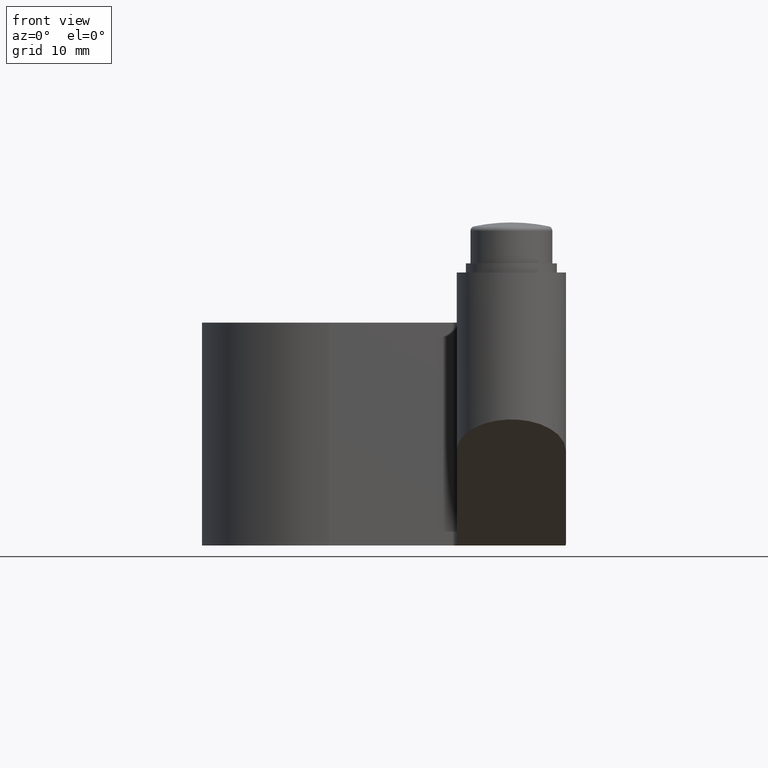
[diagram: clean part render]
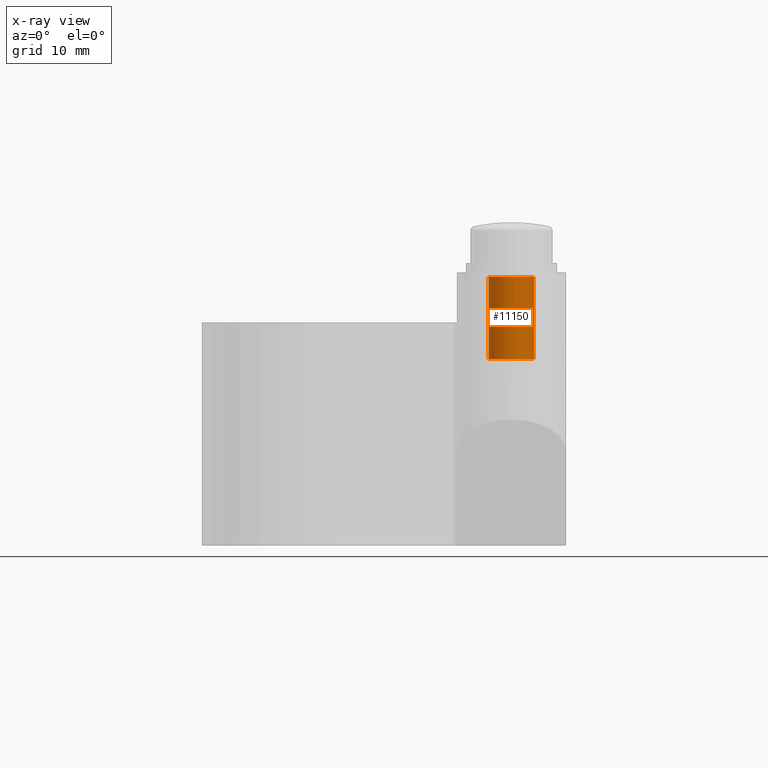
[diagram: x-ray — body ghosted, one internal face saturated and labeled with its STEP entity id]
A machine part, front view, then the same camera in x-ray: the body is ghosted and one INTERNAL B-rep face — a face not visible from any outside direction — is saturated and labeled: STEP entity #11150.
In plain terms, the highlighted cylindrical surface (edge-blend (fillet) strip) has radius 2.5 mm, axis along (0, 0, 1).
Its self-contained STEP definition (entity closure, byte-faithful):
#948 = ORIENTED_EDGE ( 'NONE', *, *, #19178, .F. ) ;
#1275 = DIRECTION ( 'NONE',  ( 1.000000000000000000, 0.0000000000000000000, 0.0000000000000000000 ) ) ;
#1313 = FACE_OUTER_BOUND ( 'NONE', #17390, .T. ) ;
#3098 = EDGE_CURVE ( 'NONE', #6860, #5759, #4453, .T. ) ;
#3440 = LINE ( 'NONE', #9127, #17045 ) ;
#3852 = EDGE_CURVE ( 'NONE', #5759, #5674, #3440, .T. ) ;
#4028 = AXIS2_PLACEMENT_3D ( 'NONE', #5829, #10463, #1275 ) ;
#4453 = CIRCLE ( 'NONE', #4028, 2.499999999999998700 ) ;
#4706 = ORIENTED_EDGE ( 'NONE', *, *, #3098, .T. ) ;
#5446 = EDGE_CURVE ( 'NONE', #5674, #11944, #14340, .T. ) ;
#5674 = VERTEX_POINT ( 'NONE', #16974 ) ;
#5759 = VERTEX_POINT ( 'NONE', #9552 ) ;
#5829 = CARTESIAN_POINT ( 'NONE',  ( 20.00000000000000400, -32.00000000000000000, 8.250000000000001800 ) ) ;
#6860 = VERTEX_POINT ( 'NONE', #14838 ) ;
#7419 = DIRECTION ( 'NONE',  ( -0.0000000000000000000, -0.0000000000000000000, 1.000000000000000000 ) ) ;
#7628 = ORIENTED_EDGE ( 'NONE', *, *, #5446, .T. ) ;
#8613 = CARTESIAN_POINT ( 'NONE',  ( 20.00000000000000400, -32.00000000000000000, 17.24999999999998200 ) ) ;
#8763 = AXIS2_PLACEMENT_3D ( 'NONE', #17477, #11233, #9516 ) ;
#9127 = CARTESIAN_POINT ( 'NONE',  ( 17.50000000000000400, -32.00000000000000000, 7.750000000000001800 ) ) ;
#9492 = CYLINDRICAL_SURFACE ( 'NONE', #8763, 2.499999999999998700 ) ;
#9516 = DIRECTION ( 'NONE',  ( 1.000000000000000000, 0.0000000000000000000, 0.0000000000000000000 ) ) ;
#9552 = CARTESIAN_POINT ( 'NONE',  ( 17.50000000000000400, -32.00000000000000000, 8.250000000000001800 ) ) ;
#10463 = DIRECTION ( 'NONE',  ( -0.0000000000000000000, -0.0000000000000000000, -1.000000000000000000 ) ) ;
#11150 = ADVANCED_FACE ( 'NONE', ( #1313 ), #9492, .F. ) ;
#11233 = DIRECTION ( 'NONE',  ( -0.0000000000000000000, -0.0000000000000000000, 1.000000000000000000 ) ) ;
#11944 = VERTEX_POINT ( 'NONE', #19116 ) ;
#13483 = CARTESIAN_POINT ( 'NONE',  ( 22.50000000000000400, -32.00000000000000000, 7.750000000000001800 ) ) ;
#14340 = CIRCLE ( 'NONE', #16369, 2.499999999999998700 ) ;
#14838 = CARTESIAN_POINT ( 'NONE',  ( 22.50000000000000400, -32.00000000000000000, 8.250000000000001800 ) ) ;
#15528 = DIRECTION ( 'NONE',  ( -0.0000000000000000000, -0.0000000000000000000, 1.000000000000000000 ) ) ;
#15902 = VECTOR ( 'NONE', #7419, 1000.000000000000000 ) ;
#16196 = ORIENTED_EDGE ( 'NONE', *, *, #3852, .T. ) ;
#16369 = AXIS2_PLACEMENT_3D ( 'NONE', #8613, #19541, #19740 ) ;
#16870 = LINE ( 'NONE', #13483, #15902 ) ;
#16974 = CARTESIAN_POINT ( 'NONE',  ( 17.50000000000000400, -32.00000000000000000, 17.24999999999998200 ) ) ;
#17045 = VECTOR ( 'NONE', #15528, 1000.000000000000000 ) ;
#17390 = EDGE_LOOP ( 'NONE', ( #4706, #16196, #7628, #948 ) ) ;
#17477 = CARTESIAN_POINT ( 'NONE',  ( 20.00000000000000400, -32.00000000000000000, 7.750000000000001800 ) ) ;
#19116 = CARTESIAN_POINT ( 'NONE',  ( 22.50000000000000400, -32.00000000000000000, 17.24999999999998200 ) ) ;
#19178 = EDGE_CURVE ( 'NONE', #6860, #11944, #16870, .T. ) ;
#19541 = DIRECTION ( 'NONE',  ( 0.0000000000000000000, 0.0000000000000000000, 1.000000000000000000 ) ) ;
#19740 = DIRECTION ( 'NONE',  ( 1.000000000000000000, 0.0000000000000000000, 0.0000000000000000000 ) ) ;